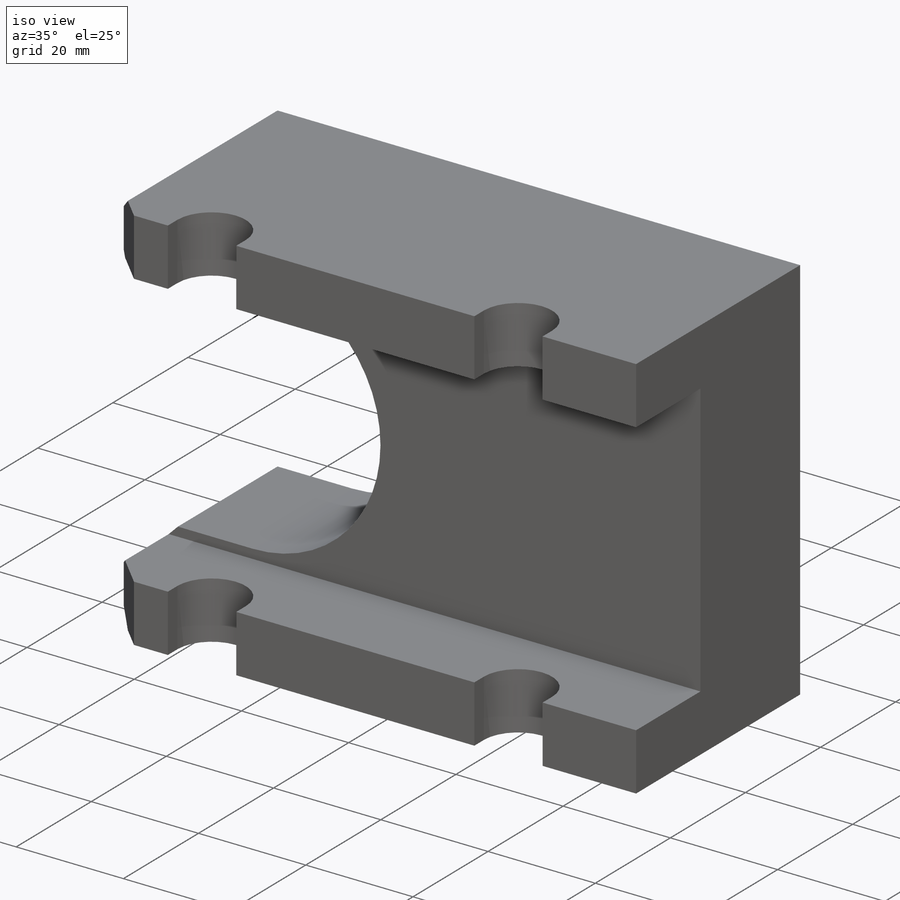
[diagram: iso view]
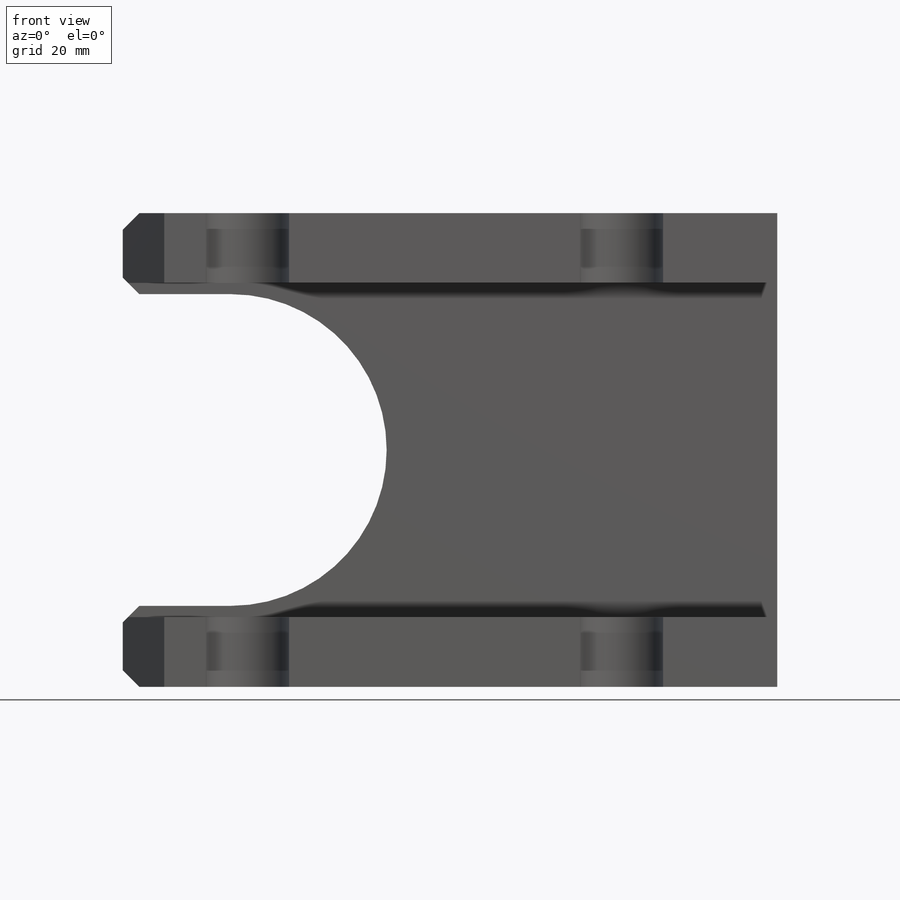
[diagram: front view]
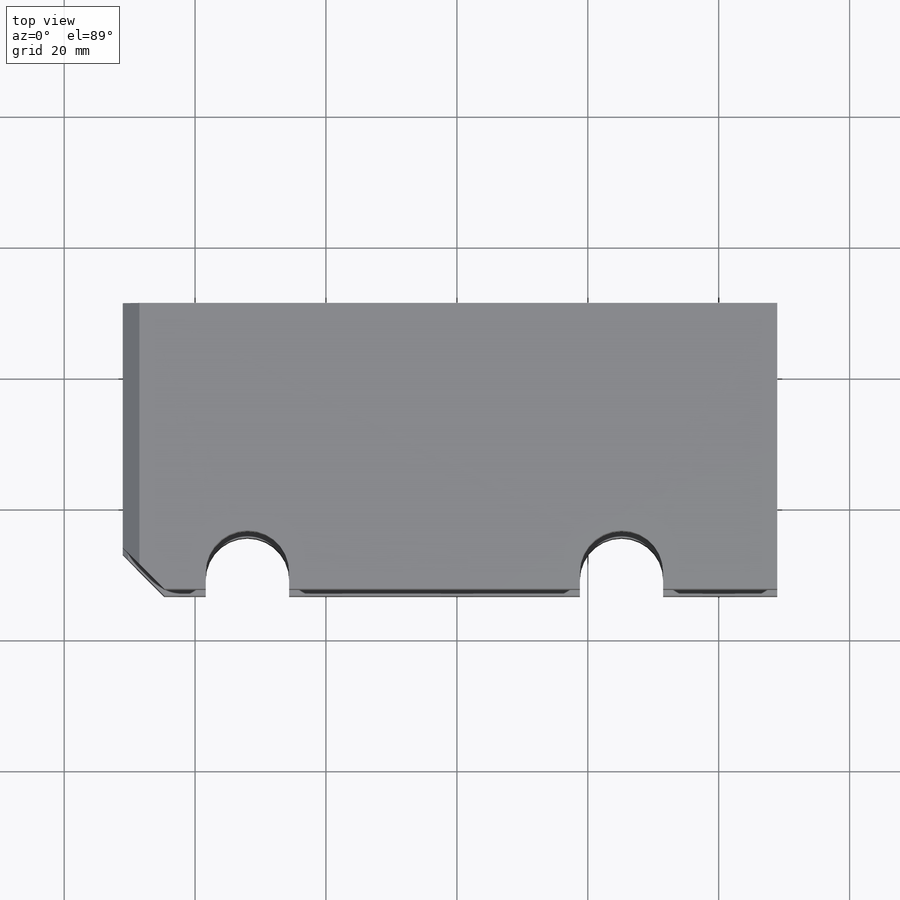
[diagram: top view]
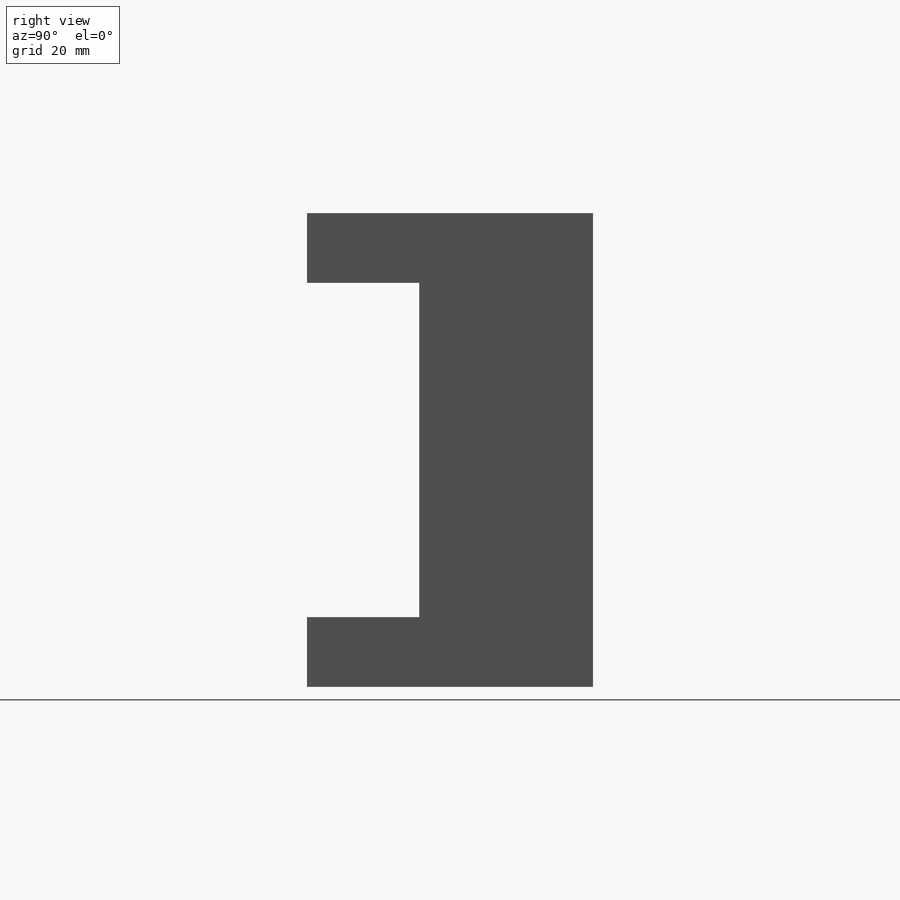
[diagram: right view]
SOLIDWORKS PART (.sldprt)
format: sldprt  version: not decoded by parser v0  size: 415,232 bytes
history: native  units: mm
features: sketch x9, plane x4, cut_extrude x3, extrude x2, chamfer x2, material x1, hole x1 (+11 scaffold rows collapsed)
feature tree (33):
  scaffold x11  (default folders/planes/origin — collapsed)
  material  "304 SSTL"
  plane  "XY"
  plane  "XZ"
  plane  "YZ"
  sketch  "Sketch5"  dims[c1.D8=7.9375mm c1.D6=7.9375mm c1.D4=22.225mm c1.D1=44.45mm c2.D4=22.225mm c2.D1=61.2648mm c2.D2=9.525mm c2.D3=47.625mm c3.D4=~12.141109mm c4.D4=45.0deg c4.D5=6.985mm c4.D6=6.985mm c4.D7=10.16mm c5.D6=6.35mm c5.D2=72.39mm c5.D1=48.9458mm c5.D4=34.544mm c5.D5=51.054mm]
  extrude  "Extrude1"  Depth=36.195mm
  sketch  "Sketch13"  dims[D2=7.9248mm D1=53.975mm D3=43.18mm ID=-1.0]
  sketch  "Sketch17"  dims[D1=51.054mm]
  extrude  "Extrude4"  Depth=17.145mm
  sketch  "Sketch16"  dims[c1.D1=12.7508mm c1.D5=6.3627mm c1.D2=5.08mm c1.D3=15.875mm c2.D2=19.05mm c2.D3=2.54mm c2.D4=57.15mm c2.D6=2.54mm]
  cut_extrude  "Cut-Extrude2"  [1 undecoded]
  sketch  "Sketch19"  dims[D1=9.652mm]
  cut_extrude  "Cut-Extrude3"  Depth=86.2mm
  hole  "1/4-20 Tapped Hole1"  Diameter=5.1054mm Depth=22.86mm
  sketch  "Sketch23"
  sketch  "Sketch22"  dims[hole-wizard template sketch: 29 standard entries collapsed; hole parameters kept: c8.Tap Drill Depth=22.86mm c8.Thread Major Dia.=6.35mm c8.Thread Depth=19.05mm c8.D5=~14.816244mm c8.Drill Angle=118.0deg]
  sketch  " original step Sketch21"  dims[D1=26.9875mm]
  chamfer  "Chamfer1"  Distance=2.54mm Angle=45deg
  plane  "Plane1"  Offset=34.544mm
  sketch  "Sketch24"  dims[D1=7.9756mm]
  cut_extrude  "Extrude5"  Depth=6.35mm
  chamfer  "Chamfer3"  Distance=6.35mm Angle=45deg
decode coverage: 15 of 17 modeling features carry decoded parameters
note: ~ marks probable driven/reference dimensions
note: 1 parameter value undecoded
note: suppression state not decoded; provenance and decode notes live in map.json
